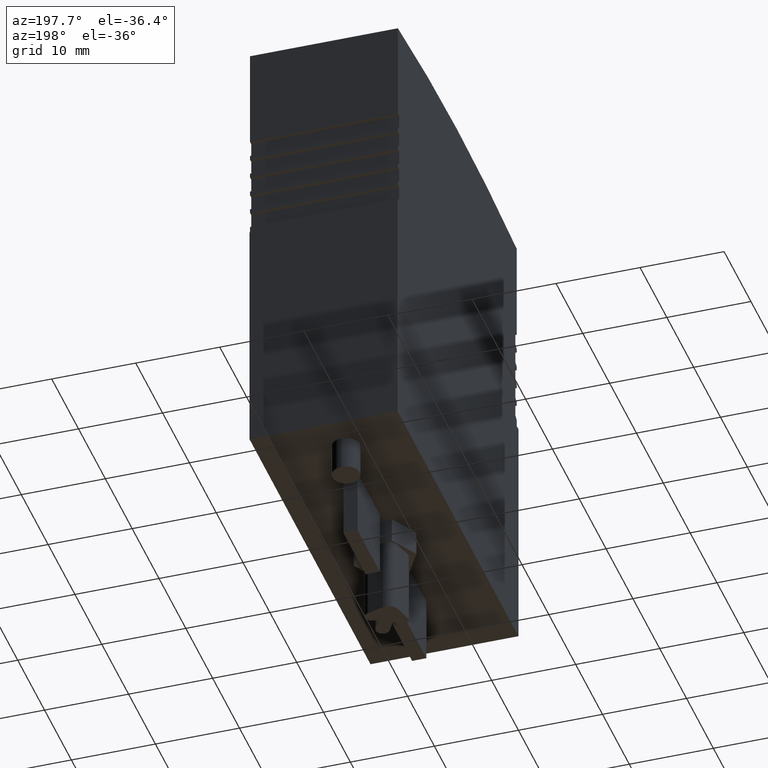
[diagram: clean part render]
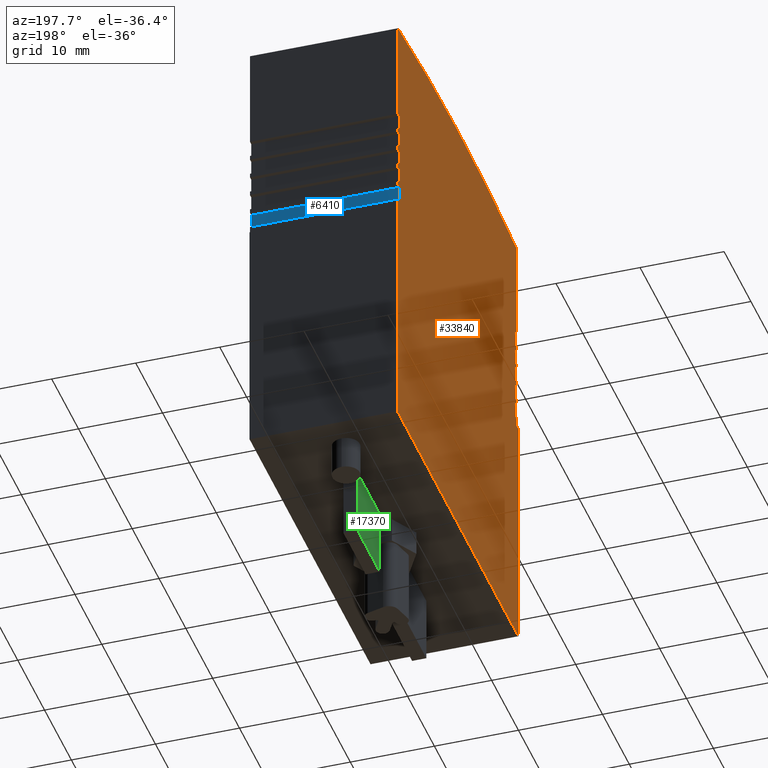
[diagram: same view with three faces highlighted in distinct colors, each labeled with its STEP entity id]
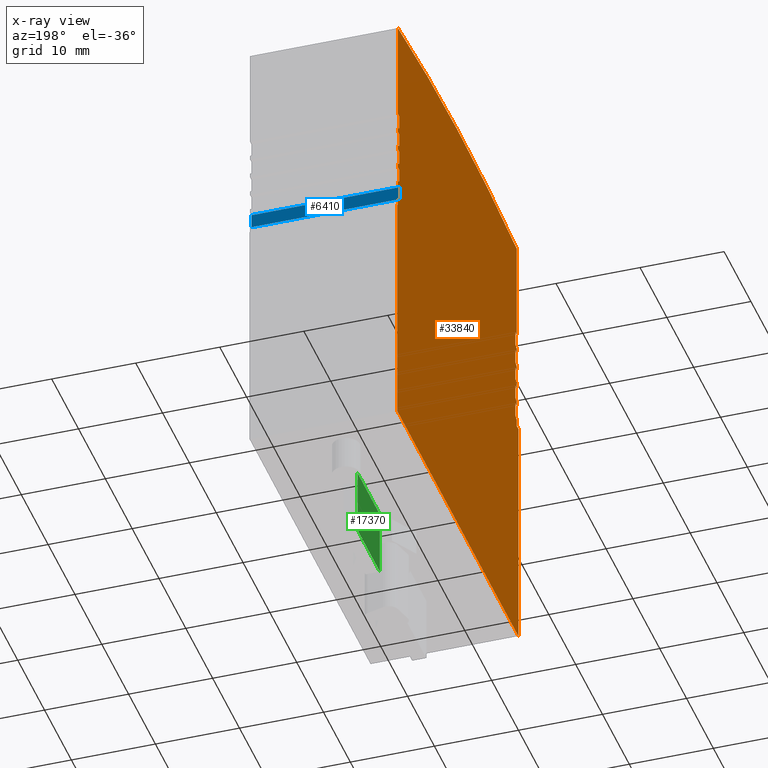
[diagram: x-ray of the same camera — body ghosted, the three highlighted faces saturated]
A machine part, auxiliary view with three faces highlighted in distinct colors.
The next image is the same camera in x-ray (body ghosted, the three faces saturated) — at least one of them is partly hidden behind the body in this view.
Their STEP definitions:

[orange] entity #33840 — the highlighted planar face has unit normal (-1, -0, 0).
#120=CARTESIAN_POINT('',(22.6924725131403,59.7149883136079,
2.64988270574728));
#130=VERTEX_POINT('',#120);
#160=CARTESIAN_POINT('',(22.6924720091142,-20.1499999998783,
2.64988270574629));
#170=DIRECTION('',(-6.31097646541974E-9,-1.,-1.24373101127272E-14));
#180=VECTOR('',#170,1.);
#190=LINE('',#160,#180);
#200=CARTESIAN_POINT('',(22.6924725099848,59.2149894029562,
2.64988270574727));
#210=VERTEX_POINT('',#200);
#220=EDGE_CURVE('',#130,#210,#190,.T.);
#540=CARTESIAN_POINT('',(0.292475090033933,59.2149894029563,
2.64988270574728));
#550=DIRECTION('',(-1.,2.22569369854498E-15,2.44929359829343E-16));
#560=VECTOR('',#550,1.);
#570=LINE('',#540,#560);
#580=CARTESIAN_POINT('',(22.1924724904202,59.2149894029562,
2.64988270574727));
#590=VERTEX_POINT('',#580);
#600=EDGE_CURVE('',#210,#590,#570,.T.);
#970=CARTESIAN_POINT('',(22.6924724973629,57.2149882065161,
2.64988270574725));
#980=VERTEX_POINT('',#970);
#1010=CARTESIAN_POINT('',(22.6924720091143,-20.1499999998783,
2.64988270574629));
#1020=DIRECTION('',(-6.31097646541974E-9,-1.,-1.24373101127272E-14));
#1030=VECTOR('',#1020,1.);
#1040=LINE('',#1010,#1030);
#1050=CARTESIAN_POINT('',(22.6924724942074,56.7149894029562,
2.64988270574724));
#1060=VERTEX_POINT('',#1050);
#1070=EDGE_CURVE('',#980,#1060,#1040,.T.);
#1420=CARTESIAN_POINT('',(22.1924724674084,60.0036664939326,
2.64988270574728));
#1430=VERTEX_POINT('',#1420);
#1480=CARTESIAN_POINT('',(0.292475090034099,72.6477681214871,
2.64988270574745));
#1490=DIRECTION('',(0.866023139286765,-0.500003922204513,
-6.42190592683949E-15));
#1500=VECTOR('',#1490,1.);
#1510=LINE('',#1480,#1500);
#1520=EDGE_CURVE('',#1430,#130,#1510,.T.);
#1770=CARTESIAN_POINT('',(22.1924724904183,-20.1499999998783,
2.64988270574629));
#1780=DIRECTION('',(-2.3541975771348E-14,-1.,-1.24373101147408E-14));
#1790=VECTOR('',#1780,1.);
#1800=LINE('',#1770,#1790);
#1810=CARTESIAN_POINT('',(22.1924724904201,57.5036665953906,
2.64988270574725));
#1820=VERTEX_POINT('',#1810);
#1830=EDGE_CURVE('',#590,#1820,#1800,.T.);
#2150=CARTESIAN_POINT('',(0.292475090034068,70.1477783516184,
2.64988270574742));
#2160=DIRECTION('',(0.866022966077588,-0.50000422220835,
-6.42190966184857E-15));
#2170=VECTOR('',#2160,1.);
#2180=LINE('',#2150,#2170);
#2190=EDGE_CURVE('',#1820,#980,#2180,.T.);
#5930=CARTESIAN_POINT('',(0.292475090033902,56.7149894029563,
2.64988270574725));
#5940=DIRECTION('',(-1.,2.22569369854498E-15,2.44929359829343E-16));
#5950=VECTOR('',#5940,1.);
#5960=LINE('',#5930,#5950);
#5970=CARTESIAN_POINT('',(22.1924724904201,56.7149894029563,
2.64988270574724));
#5980=VERTEX_POINT('',#5970);
#5990=EDGE_CURVE('',#1060,#5980,#5960,.T.);
#6240=CARTESIAN_POINT('',(22.1924724904183,-20.1499999998783,
2.64988270574629));
#6250=DIRECTION('',(-2.3541975771348E-14,-1.,-1.24373101147408E-14));
#6260=VECTOR('',#6250,1.);
#6270=LINE('',#6240,#6260);
#6280=CARTESIAN_POINT('',(22.1924724904201,55.0036665953905,
2.64988270574722));
#6290=VERTEX_POINT('',#6280);
#6300=EDGE_CURVE('',#5980,#6290,#6270,.T.);
#6550=CARTESIAN_POINT('',(0.292475090034037,67.6477783516183,
2.64988270574738));
#6560=DIRECTION('',(0.866022966077588,-0.50000422220835,
-6.42190966184857E-15));
#6570=VECTOR('',#6560,1.);
#6580=LINE('',#6550,#6570);
#6590=CARTESIAN_POINT('',(22.692472462647,54.7149882265594,
2.64988270574722));
#6600=VERTEX_POINT('',#6590);
#6610=EDGE_CURVE('',#6290,#6600,#6580,.T.);
#6860=CARTESIAN_POINT('',(22.6924724626451,-20.1499999998783,
2.64988270574629));
#6870=DIRECTION('',(-2.60052831072351E-14,-1.,-1.24373101147408E-14));
#6880=VECTOR('',#6870,1.);
#6890=LINE('',#6860,#6880);
#6900=CARTESIAN_POINT('',(22.692472462647,53.8645893914091,
2.64988270574721));
#6910=VERTEX_POINT('',#6900);
#6920=EDGE_CURVE('',#6600,#6910,#6890,.T.);
#7200=CARTESIAN_POINT('',(22.8462375601576,53.8645893914091,
2.64988270574721));
#7210=VERTEX_POINT('',#7200);
#7240=CARTESIAN_POINT('',(22.8462375601576,-20.1499999998783,
2.64988270574629));
#7250=DIRECTION('',(1.26591334879562E-16,-1.,-1.24373101147408E-14));
#7260=VECTOR('',#7250,1.);
#7270=LINE('',#7240,#7260);
#7280=CARTESIAN_POINT('',(22.8462375601576,24.7145893912871,
2.64988270574684));
#7290=VERTEX_POINT('',#7280);
#7300=EDGE_CURVE('',#7210,#7290,#7270,.T.);
#7490=CARTESIAN_POINT('',(0.292475090033866,53.8645893914106,
2.64988270574721));
#7500=DIRECTION('',(1.,-6.73194574110987E-14,-2.44929359830154E-16));
#7510=VECTOR('',#7500,1.);
#7520=LINE('',#7490,#7510);
#7530=EDGE_CURVE('',#6910,#7210,#7520,.T.);
#7710=CARTESIAN_POINT('',(0.292475090033866,53.8645893914106,
2.64988270574721));
#7720=DIRECTION('',(1.,-6.73194574110987E-14,-2.44929359830154E-16));
#7730=VECTOR('',#7720,1.);
#7740=LINE('',#7710,#7730);
#7750=CARTESIAN_POINT('',(-22.2537624398426,53.8645893914122,
2.64988270574722));
#7760=VERTEX_POINT('',#7750);
#7770=CARTESIAN_POINT('',(-21.6075274793369,53.8645893914121,
2.64988270574722));
#7780=VERTEX_POINT('',#7770);
#7790=EDGE_CURVE('',#7760,#7780,#7740,.T.);
#8100=CARTESIAN_POINT('',(-21.6075274793449,-20.1499999998778,
2.6498827057463));
#8110=DIRECTION('',(1.08637101161914E-13,1.,1.24373101147408E-14));
#8120=VECTOR('',#8110,1.);
#8130=LINE('',#8100,#8120);
#8140=CARTESIAN_POINT('',(-21.6075274793368,54.7149882265624,
2.64988270574723));
#8150=VERTEX_POINT('',#8140);
#8160=EDGE_CURVE('',#7780,#8150,#8130,.T.);
#8410=CARTESIAN_POINT('',(0.292475090034034,67.3591029671346,
2.64988270574738));
#8420=DIRECTION('',(0.866022966077655,0.500004222208234,
6.01550618185897E-15));
#8430=VECTOR('',#8420,1.);
#8440=LINE('',#8410,#8430);
#8450=CARTESIAN_POINT('',(-21.1075275071098,55.0036665953934,
2.64988270574723));
#8460=VERTEX_POINT('',#8450);
#8470=EDGE_CURVE('',#8150,#8460,#8440,.T.);
#8720=CARTESIAN_POINT('',(-21.1075275071181,-20.1499999998778,
2.6498827057463));
#8730=DIRECTION('',(1.11100408497801E-13,1.,1.24373101147408E-14));
#8740=VECTOR('',#8730,1.);
#8750=LINE('',#8720,#8740);
#8760=CARTESIAN_POINT('',(-21.1075275071096,56.7149894029592,
2.64988270574725));
#8770=VERTEX_POINT('',#8760);
#8780=EDGE_CURVE('',#8460,#8770,#8750,.T.);
#9030=CARTESIAN_POINT('',(0.292475090033902,56.7149894029564,
2.64988270574725));
#9040=DIRECTION('',(-1.,1.32416690570604E-13,2.4492935983096E-16));
#9050=VECTOR('',#9040,1.);
#9060=LINE('',#9030,#9050);
#9070=CARTESIAN_POINT('',(-21.6075275108969,56.7149894029593,
2.64988270574725));
#9080=VERTEX_POINT('',#9070);
#9090=EDGE_CURVE('',#8770,#9080,#9060,.T.);
#9340=CARTESIAN_POINT('',(-21.6075270258142,-20.1499999998778,
2.6498827057463));
#9350=DIRECTION('',(-6.31084182303547E-9,1.,1.24373101167545E-14));
#9360=VECTOR('',#9350,1.);
#9370=LINE('',#9340,#9360);
#9380=CARTESIAN_POINT('',(-21.6075275140524,57.2149882065191,
2.64988270574726));
#9390=VERTEX_POINT('',#9380);
#9400=EDGE_CURVE('',#9080,#9390,#9370,.T.);
#9650=CARTESIAN_POINT('',(0.292475090034065,69.8591029671346,
2.64988270574741));
#9660=DIRECTION('',(0.866022966077655,0.500004222208234,
6.01550618185897E-15));
#9670=VECTOR('',#9660,1.);
#9680=LINE('',#9650,#9670);
#9690=CARTESIAN_POINT('',(-21.1075275071096,57.5036665953935,
2.64988270574726));
#9700=VERTEX_POINT('',#9690);
#9710=EDGE_CURVE('',#9390,#9700,#9680,.T.);
#9960=CARTESIAN_POINT('',(-21.1075275071181,-20.1499999998778,
2.6498827057463));
#9970=DIRECTION('',(1.11100408497801E-13,1.,1.24373101147408E-14));
#9980=VECTOR('',#9970,1.);
#9990=LINE('',#9960,#9980);
#10000=CARTESIAN_POINT('',(-21.1075275071093,59.2149894029591,
2.64988270574728));
#10010=VERTEX_POINT('',#10000);
#10020=EDGE_CURVE('',#9700,#10010,#9990,.T.);
#10270=CARTESIAN_POINT('',(0.292475090033933,59.2149894029563,
2.64988270574728));
#10280=DIRECTION('',(-1.,1.32416690570604E-13,2.4492935983096E-16));
#10290=VECTOR('',#10280,1.);
#10300=LINE('',#10270,#10290);
#10310=CARTESIAN_POINT('',(-21.607527526674,59.2149894029592,
2.64988270574728));
#10320=VERTEX_POINT('',#10310);
#10330=EDGE_CURVE('',#10010,#10320,#10300,.T.);
#10580=CARTESIAN_POINT('',(-21.6075270258141,-20.1499999998778,
2.6498827057463));
#10590=DIRECTION('',(-6.31084182303547E-9,1.,1.24373101167545E-14));
#10600=VECTOR('',#10590,1.);
#10610=LINE('',#10580,#10600);
#10620=CARTESIAN_POINT('',(-21.6075275298294,59.7149883136109,
2.64988270574729));
#10630=VERTEX_POINT('',#10620);
#10640=EDGE_CURVE('',#10320,#10630,#10610,.T.);
#10890=CARTESIAN_POINT('',(0.292475090034096,72.3590929679457,
2.64988270574744));
#10900=DIRECTION('',(0.866023139286832,0.500003922204396,
6.01550240442587E-15));
#10910=VECTOR('',#10900,1.);
#10920=LINE('',#10890,#10910);
#10930=CARTESIAN_POINT('',(-21.1075274840974,60.0036664939355,
2.64988270574729));
#10940=VERTEX_POINT('',#10930);
#10950=EDGE_CURVE('',#10630,#10940,#10920,.T.);
#11200=CARTESIAN_POINT('',(-21.1075260003224,-20.1499999998778,
2.6498827057463));
#11210=DIRECTION('',(-1.851162961977E-8,1.,1.24373101186622E-14));
#11220=VECTOR('',#11210,1.);
#11230=LINE('',#11200,#11220);
#11240=CARTESIAN_POINT('',(-21.1075275157768,61.7149894029589,
2.64988270574732));
#11250=VERTEX_POINT('',#11240);
#11260=EDGE_CURVE('',#10940,#11250,#11230,.T.);
#11510=CARTESIAN_POINT('',(0.292475090033964,61.7149894029565,
2.64988270574731));
#11520=DIRECTION('',(-1.,1.11100408497801E-13,2.44929359830699E-16));
#11530=VECTOR('',#11520,1.);
#11540=LINE('',#11510,#11530);
#11550=CARTESIAN_POINT('',(-21.6075275283717,61.7149894029589,
2.64988270574732));
#11560=VERTEX_POINT('',#11550);
#11570=EDGE_CURVE('',#11250,#11560,#11540,.T.);
#11820=CARTESIAN_POINT('',(-21.6075275283808,-20.1499999998778,
2.6498827057463));
#11830=DIRECTION('',(1.11100408497801E-13,1.,1.24373101147408E-14));
#11840=VECTOR('',#11830,1.);
#11850=LINE('',#11820,#11840);
#11860=CARTESIAN_POINT('',(-21.6075275283716,62.2149883144523,
2.64988270574732));
#11870=VERTEX_POINT('',#11860);
#11880=EDGE_CURVE('',#11560,#11870,#11850,.T.);
#12130=CARTESIAN_POINT('',(0.292475090034127,74.8590929679455,
2.64988270574747));
#12140=DIRECTION('',(0.866023139286832,0.500003922204396,
6.01550240442587E-15));
#12150=VECTOR('',#12140,1.);
#12160=LINE('',#12130,#12150);
#12170=CARTESIAN_POINT('',(-21.1075274840972,62.5036664939354,
2.64988270574733));
#12180=VERTEX_POINT('',#12170);
#12190=EDGE_CURVE('',#11870,#12180,#12160,.T.);
#12440=CARTESIAN_POINT('',(-21.1075259540431,-20.1499999998778,
2.6498827057463));
#12450=DIRECTION('',(-1.851162961977E-8,1.,1.24373101186622E-14));
#12460=VECTOR('',#12450,1.);
#12470=LINE('',#12440,#12460);
#12480=CARTESIAN_POINT('',(-21.1075275157765,64.2149894029589,
2.64988270574735));
#12490=VERTEX_POINT('',#12480);
#12500=EDGE_CURVE('',#12180,#12490,#12470,.T.);
#12750=CARTESIAN_POINT('',(0.292475090033995,64.2149894029565,
2.64988270574734));
#12760=DIRECTION('',(-1.,1.11100408497801E-13,2.44929359830699E-16));
#12770=VECTOR('',#12760,1.);
#12780=LINE('',#12750,#12770);
#12790=CARTESIAN_POINT('',(-21.6075275083719,64.2149894029589,
2.64988270574735));
#12800=VERTEX_POINT('',#12790);
#12810=EDGE_CURVE('',#12490,#12800,#12780,.T.);
#13060=CARTESIAN_POINT('',(-21.6075212373564,-20.1499999998778,
2.6498827057463));
#13070=DIRECTION('',(-7.43319653554157E-8,0.999999999999997,
1.24373101304613E-14));
#13080=VECTOR('',#13070,1.);
#13090=LINE('',#13060,#13080);
#13100=CARTESIAN_POINT('',(-21.6075275455378,64.7149883045421,
2.64988270574735));
#13110=VERTEX_POINT('',#13100);
#13120=EDGE_CURVE('',#12800,#13110,#13090,.T.);
#13370=CARTESIAN_POINT('',(0.292475090034158,77.359092967842,
2.64988270574751));
#13380=DIRECTION('',(0.866023139288619,0.500003922201301,
6.0155024043869E-15));
#13390=VECTOR('',#13380,1.);
#13400=LINE('',#13370,#13390);
#13410=CARTESIAN_POINT('',(-21.1075274840969,65.003666493934,
2.64988270574736));
#13420=VERTEX_POINT('',#13410);
#13430=EDGE_CURVE('',#13110,#13420,#13400,.T.);
#13680=CARTESIAN_POINT('',(-21.1075259077637,-20.1499999998778,
2.6498827057463));
#13690=DIRECTION('',(-1.851162961977E-8,1.,1.24373101186622E-14));
#13700=VECTOR('',#13690,1.);
#13710=LINE('',#13680,#13700);
#13720=CARTESIAN_POINT('',(-21.1075275157763,66.7149894029575,
2.64988270574738));
#13730=VERTEX_POINT('',#13720);
#13740=EDGE_CURVE('',#13420,#13730,#13710,.T.);
#13990=CARTESIAN_POINT('',(0.292475090034026,66.714989402876,
2.64988270574737));
#14000=DIRECTION('',(-1.,3.80391382466514E-12,2.44929359876765E-16));
#14010=VECTOR('',#14000,1.);
#14020=LINE('',#13990,#14010);
#14030=CARTESIAN_POINT('',(-21.6075275083439,66.7149894029593,
2.64988270574738));
#14040=VERTEX_POINT('',#14030);
#14050=EDGE_CURVE('',#13730,#14040,#14020,.T.);
#14330=CARTESIAN_POINT('',(-22.2537624398426,24.7145893912871,
2.64988270574686));
#14340=VERTEX_POINT('',#14330);
#14370=CARTESIAN_POINT('',(-22.2537624398426,-20.1499999998778,
2.6498827057463));
#14380=DIRECTION('',(-1.26591334879562E-16,1.,1.24373101147408E-14));
#14390=VECTOR('',#14380,1.);
#14400=LINE('',#14370,#14390);
#14410=EDGE_CURVE('',#14340,#7760,#14400,.T.);
#15910=CARTESIAN_POINT('',(0.292475090033505,24.7145893912871,
2.64988270574685));
#15920=DIRECTION('',(-1.,-1.26591334879567E-16,2.44929359829314E-16));
#15930=VECTOR('',#15920,1.);
#15940=LINE('',#15910,#15930);
#15950=EDGE_CURVE('',#7290,#14340,#15940,.T.);
#25930=CARTESIAN_POINT('',(-21.6075275083532,-20.1499999998778,
2.6498827057463));
#25940=DIRECTION('',(1.11100408497801E-13,1.,1.24373101147408E-14));
#25950=VECTOR('',#25940,1.);
#25960=LINE('',#25930,#25950);
#25970=CARTESIAN_POINT('',(-21.6075275083425,78.8123485403437,
2.64988270574753));
#25980=VERTEX_POINT('',#25970);
#25990=EDGE_CURVE('',#14040,#25980,#25960,.T.);
#27730=CARTESIAN_POINT('',(0.292472491654934,-119.985010597046,
2.64988270574505));
#27740=DIRECTION('',(2.44929359829315E-16,-1.24373101147408E-14,1.));
#27750=DIRECTION('',(2.09858061726449E-16,-1.,-1.24373101147408E-14));
#27760=AXIS2_PLACEMENT_3D('',#27730,#27740,#27750);
#27770=CIRCLE('',#27760,200.);
#27780=CARTESIAN_POINT('',(22.6924724916559,78.7566307366215,
2.64988270574752));
#27790=VERTEX_POINT('',#27780);
#27800=EDGE_CURVE('',#27790,#25980,#27770,.T.);
#29820=CARTESIAN_POINT('',(22.6924724916536,-20.1499999998783,
2.64988270574629));
#29830=DIRECTION('',(-2.3541975771348E-14,-1.,-1.24373101147408E-14));
#29840=VECTOR('',#29830,1.);
#29850=LINE('',#29820,#29840);
#29860=CARTESIAN_POINT('',(22.6924724916557,66.7149894029563,
2.64988270574737));
#29870=VERTEX_POINT('',#29860);
#29880=EDGE_CURVE('',#27790,#29870,#29850,.T.);
#30130=CARTESIAN_POINT('',(0.292475090034026,66.7149894028742,
2.64988270574737));
#30140=DIRECTION('',(-1.,-3.66926797094904E-12,2.44929359784004E-16));
#30150=VECTOR('',#30140,1.);
#30160=LINE('',#30130,#30150);
#30170=CARTESIAN_POINT('',(22.1924724990881,66.7149894029545,
2.64988270574737));
#30180=VERTEX_POINT('',#30170);
#30190=EDGE_CURVE('',#29870,#30180,#30160,.T.);
#30440=CARTESIAN_POINT('',(22.1924708910639,-20.1499999998783,
2.64988270574629));
#30450=DIRECTION('',(-1.85117642656237E-8,-1.,-1.24373101108194E-14));
#30460=VECTOR('',#30450,1.);
#30470=LINE('',#30440,#30460);
#30480=CARTESIAN_POINT('',(22.1924724674085,65.0036664939311,
2.64988270574735));
#30490=VERTEX_POINT('',#30480);
#30500=EDGE_CURVE('',#30180,#30490,#30470,.T.);
#30750=CARTESIAN_POINT('',(0.292475090034161,77.6477681213813,
2.64988270574751));
#30760=DIRECTION('',(0.866023139288552,-0.500003922201418,
-6.39415035118532E-15));
#30770=VECTOR('',#30760,1.);
#30780=LINE('',#30750,#30770);
#30790=CARTESIAN_POINT('',(22.6924725288493,64.7149883045391,
2.64988270574734));
#30800=VERTEX_POINT('',#30790);
#30810=EDGE_CURVE('',#30490,#30800,#30780,.T.);
#31060=CARTESIAN_POINT('',(22.6924662206565,-20.1499999998783,
2.64988270574629));
#31070=DIRECTION('',(-7.43321000012694E-8,-0.999999999999997,
-1.24373100990203E-14));
#31080=VECTOR('',#31070,1.);
#31090=LINE('',#31060,#31080);
#31100=CARTESIAN_POINT('',(22.6924724916834,64.2149894029559,
2.64988270574734));
#31110=VERTEX_POINT('',#31100);
#31120=EDGE_CURVE('',#30800,#31110,#31090,.T.);
#31370=CARTESIAN_POINT('',(0.292475090033995,64.2149894029564,
2.64988270574734));
#31380=DIRECTION('',(-1.,2.3541975771348E-14,2.44929359829608E-16));
#31390=VECTOR('',#31380,1.);
#31400=LINE('',#31370,#31390);
#31410=CARTESIAN_POINT('',(22.1924724990881,64.2149894029559,
2.64988270574734));
#31420=VERTEX_POINT('',#31410);
#31430=EDGE_CURVE('',#31110,#31420,#31400,.T.);
#31680=CARTESIAN_POINT('',(22.1924709373433,-20.1499999998783,
2.64988270574629));
#31690=DIRECTION('',(-1.85117642656237E-8,-1.,-1.24373101108194E-14));
#31700=VECTOR('',#31690,1.);
#31710=LINE('',#31680,#31700);
#31720=CARTESIAN_POINT('',(22.1924724674084,62.5036664939325,
2.64988270574731));
#31730=VERTEX_POINT('',#31720);
#31740=EDGE_CURVE('',#31420,#31730,#31710,.T.);
#31990=CARTESIAN_POINT('',(0.29247509003413,75.1477681214871,
2.64988270574748));
#32000=DIRECTION('',(0.866023139286765,-0.500003922204513,
-6.42190592683949E-15));
#32010=VECTOR('',#32000,1.);
#32020=LINE('',#31990,#32010);
#32030=CARTESIAN_POINT('',(22.6924725116829,62.2149883144493,
2.64988270574731));
#32040=VERTEX_POINT('',#32030);
#32050=EDGE_CURVE('',#31730,#32040,#32020,.T.);
#32300=CARTESIAN_POINT('',(22.6924725116809,-20.1499999998783,
2.64988270574629));
#32310=DIRECTION('',(-2.3541975771348E-14,-1.,-1.24373101147408E-14));
#32320=VECTOR('',#32310,1.);
#32330=LINE('',#32300,#32320);
#32340=CARTESIAN_POINT('',(22.6924725116829,61.7149894029559,
2.6498827057473));
#32350=VERTEX_POINT('',#32340);
#32360=EDGE_CURVE('',#32040,#32350,#32330,.T.);
#32610=CARTESIAN_POINT('',(0.292475090033964,61.7149894029565,
2.64988270574731));
#32620=DIRECTION('',(-1.,2.3541975771348E-14,2.44929359829608E-16));
#32630=VECTOR('',#32620,1.);
#32640=LINE('',#32610,#32630);
#32650=CARTESIAN_POINT('',(22.192472499088,61.7149894029559,
2.64988270574731));
#32660=VERTEX_POINT('',#32650);
#32670=EDGE_CURVE('',#32350,#32660,#32640,.T.);
#32920=CARTESIAN_POINT('',(22.1924709836226,-20.1499999998783,
2.64988270574629));
#32930=DIRECTION('',(-1.85117642656237E-8,-1.,-1.24373101108194E-14));
#32940=VECTOR('',#32930,1.);
#32950=LINE('',#32920,#32940);
#32960=EDGE_CURVE('',#32660,#1430,#32950,.T.);
#33290=CARTESIAN_POINT('',(-32.2109646920055,19.3208339196504,
2.64988270574679));
#33300=DIRECTION('',(-2.44929359829315E-16,1.24373101147408E-14,-1.));
#33310=DIRECTION('',(0.0250118036177386,0.99968715590418,
1.24272930506553E-14));
#33320=AXIS2_PLACEMENT_3D('',#33290,#33300,#33310);
#33330=PLANE('',#33320);
#33340=ORIENTED_EDGE('',*,*,#1830,.T.);
#33350=ORIENTED_EDGE('',*,*,#600,.T.);
#33360=ORIENTED_EDGE('',*,*,#220,.T.);
#33370=ORIENTED_EDGE('',*,*,#1520,.T.);
#33380=ORIENTED_EDGE('',*,*,#32960,.T.);
#33390=ORIENTED_EDGE('',*,*,#32670,.T.);
#33400=ORIENTED_EDGE('',*,*,#32360,.T.);
#33410=ORIENTED_EDGE('',*,*,#32050,.T.);
#33420=ORIENTED_EDGE('',*,*,#31740,.T.);
#33430=ORIENTED_EDGE('',*,*,#31430,.T.);
#33440=ORIENTED_EDGE('',*,*,#31120,.T.);
#33450=ORIENTED_EDGE('',*,*,#30810,.T.);
#33460=ORIENTED_EDGE('',*,*,#30500,.T.);
#33470=ORIENTED_EDGE('',*,*,#30190,.T.);
#33480=ORIENTED_EDGE('',*,*,#29880,.T.);
#33490=ORIENTED_EDGE('',*,*,#27800,.F.);
#33500=ORIENTED_EDGE('',*,*,#25990,.T.);
#33510=ORIENTED_EDGE('',*,*,#14050,.T.);
#33520=ORIENTED_EDGE('',*,*,#13740,.T.);
#33530=ORIENTED_EDGE('',*,*,#13430,.T.);
#33540=ORIENTED_EDGE('',*,*,#13120,.T.);
#33550=ORIENTED_EDGE('',*,*,#12810,.T.);
#33560=ORIENTED_EDGE('',*,*,#12500,.T.);
#33570=ORIENTED_EDGE('',*,*,#12190,.T.);
#33580=ORIENTED_EDGE('',*,*,#11880,.T.);
#33590=ORIENTED_EDGE('',*,*,#11570,.T.);
#33600=ORIENTED_EDGE('',*,*,#11260,.T.);
#33610=ORIENTED_EDGE('',*,*,#10950,.T.);
#33620=ORIENTED_EDGE('',*,*,#10640,.T.);
#33630=ORIENTED_EDGE('',*,*,#10330,.T.);
#33640=ORIENTED_EDGE('',*,*,#10020,.T.);
#33650=ORIENTED_EDGE('',*,*,#9710,.T.);
#33660=ORIENTED_EDGE('',*,*,#9400,.T.);
#33670=ORIENTED_EDGE('',*,*,#9090,.T.);
#33680=ORIENTED_EDGE('',*,*,#8780,.T.);
#33690=ORIENTED_EDGE('',*,*,#8470,.T.);
#33700=ORIENTED_EDGE('',*,*,#8160,.T.);
#33710=ORIENTED_EDGE('',*,*,#7790,.T.);
#33720=ORIENTED_EDGE('',*,*,#14410,.T.);
#33730=ORIENTED_EDGE('',*,*,#15950,.T.);
#33740=ORIENTED_EDGE('',*,*,#7300,.T.);
#33750=ORIENTED_EDGE('',*,*,#7530,.T.);
#33760=ORIENTED_EDGE('',*,*,#6920,.T.);
#33770=ORIENTED_EDGE('',*,*,#6610,.T.);
#33780=ORIENTED_EDGE('',*,*,#6300,.T.);
#33790=ORIENTED_EDGE('',*,*,#5990,.T.);
#33800=ORIENTED_EDGE('',*,*,#1070,.T.);
#33810=ORIENTED_EDGE('',*,*,#2190,.T.);
#33820=EDGE_LOOP('',(#33810,#33800,#33790,#33780,#33770,#33760,#33750,
#33740,#33730,#33720,#33710,#33700,#33690,#33680,#33670,#33660,#33650,
#33640,#33630,#33620,#33610,#33600,#33590,#33580,#33570,#33560,#33550,
#33540,#33530,#33520,#33510,#33500,#33490,#33480,#33470,#33460,#33450,
#33440,#33430,#33420,#33410,#33400,#33390,#33380,#33370,#33360,#33350,
#33340));
#33830=FACE_OUTER_BOUND('',#33820,.T.);
#33840=ADVANCED_FACE('',(#33830),#33330,.T.);

[blue] entity #6410 — the highlighted planar face has unit normal (0, -1, 0).
#3250=CARTESIAN_POINT('',(22.1924724904201,56.714989402956,
20.2498827057472));
#3260=VERTEX_POINT('',#3250);
#3290=CARTESIAN_POINT('',(22.1924724904183,-20.1499999998786,
20.2498827057463));
#3300=DIRECTION('',(2.3541975771348E-14,1.,1.24373101147408E-14));
#3310=VECTOR('',#3300,1.);
#3320=LINE('',#3290,#3310);
#3330=CARTESIAN_POINT('',(22.1924724904201,55.0036665953902,
20.2498827057472));
#3340=VERTEX_POINT('',#3330);
#3350=EDGE_CURVE('',#3340,#3260,#3320,.T.);
#5970=CARTESIAN_POINT('',(22.1924724904201,56.7149894029563,
2.64988270574724));
#5980=VERTEX_POINT('',#5970);
#6010=CARTESIAN_POINT('',(22.1924724904201,56.7149894029562,
7.14988270574728));
#6020=DIRECTION('',(2.44929359829315E-16,-1.24373101147408E-14,1.));
#6030=VECTOR('',#6020,1.);
#6040=LINE('',#6010,#6030);
#6050=EDGE_CURVE('',#5980,#3260,#6040,.T.);
#6180=CARTESIAN_POINT('',(22.1924724904201,56.7149894029558,
38.1498827057473));
#6190=DIRECTION('',(-1.,2.35408664809479E-14,2.44929359829608E-16));
#6200=DIRECTION('',(2.35408664809479E-14,1.,1.24373101147408E-14));
#6210=AXIS2_PLACEMENT_3D('',#6180,#6190,#6200);
#6220=PLANE('',#6210);
#6230=ORIENTED_EDGE('',*,*,#6050,.T.);
#6240=CARTESIAN_POINT('',(22.1924724904183,-20.1499999998783,
2.64988270574629));
#6250=DIRECTION('',(-2.3541975771348E-14,-1.,-1.24373101147408E-14));
#6260=VECTOR('',#6250,1.);
#6270=LINE('',#6240,#6260);
#6280=CARTESIAN_POINT('',(22.1924724904201,55.0036665953905,
2.64988270574722));
#6290=VERTEX_POINT('',#6280);
#6300=EDGE_CURVE('',#5980,#6290,#6270,.T.);
#6310=ORIENTED_EDGE('',*,*,#6300,.F.);
#6320=CARTESIAN_POINT('',(22.1924724904201,55.0036665953904,
7.14988270574726));
#6330=DIRECTION('',(2.44929359829315E-16,-1.24373101147408E-14,1.));
#6340=VECTOR('',#6330,1.);
#6350=LINE('',#6320,#6340);
#6360=EDGE_CURVE('',#6290,#3340,#6350,.T.);
#6370=ORIENTED_EDGE('',*,*,#6360,.F.);
#6380=ORIENTED_EDGE('',*,*,#3350,.F.);
#6390=EDGE_LOOP('',(#6380,#6370,#6310,#6230));
#6400=FACE_OUTER_BOUND('',#6390,.T.);
#6410=ADVANCED_FACE('',(#6400),#6220,.F.);

[green] entity #17370 — the highlighted planar face has unit normal (-1, -0, 0).
#15600=CARTESIAN_POINT('',(12.9712375536265,24.714589391287,
10.5499542461082));
#15610=VERTEX_POINT('',#15600);
#15780=CARTESIAN_POINT('',(4.67123755362646,24.714589391287,
10.5499542461082));
#15790=VERTEX_POINT('',#15780);
#15820=CARTESIAN_POINT('',(0.292475090033506,24.714589391287,
10.5499542461082));
#15830=DIRECTION('',(1.,1.22464679914738E-16,-2.44929359829314E-16));
#15840=VECTOR('',#15830,1.);
#15850=LINE('',#15820,#15840);
#15860=EDGE_CURVE('',#15790,#15610,#15850,.T.);
#16130=CARTESIAN_POINT('',(4.67123755362646,16.6645893912869,
10.5499542461081));
#16140=VERTEX_POINT('',#16130);
#16290=CARTESIAN_POINT('',(12.9712375536265,16.664589391287,
10.5499542461081));
#16300=VERTEX_POINT('',#16290);
#16330=CARTESIAN_POINT('',(4.67123755362646,16.6645893912869,
10.5499542461081));
#16340=DIRECTION('',(1.,1.22464679914738E-16,-2.44929359829313E-16));
#16350=VECTOR('',#16340,1.);
#16360=LINE('',#16330,#16350);
#16370=EDGE_CURVE('',#16140,#16300,#16360,.T.);
#16540=CARTESIAN_POINT('',(12.9712375536265,24.714589391287,
10.5499542461082));
#16550=DIRECTION('',(1.22464679914735E-16,-1.,-1.24373101147408E-14));
#16560=VECTOR('',#16550,1.);
#16570=LINE('',#16540,#16560);
#16580=EDGE_CURVE('',#15610,#16300,#16570,.T.);
#17090=CARTESIAN_POINT('',(4.67123755362646,24.714589391287,
10.5499542461082));
#17100=DIRECTION('',(1.22464679914735E-16,-1.,-1.24373101147408E-14));
#17110=VECTOR('',#17100,1.);
#17120=LINE('',#17090,#17110);
#17130=EDGE_CURVE('',#15790,#16140,#17120,.T.);
#17260=CARTESIAN_POINT('',(12.9712375536265,24.714589391287,
10.5499542461082));
#17270=DIRECTION('',(-2.44929359829315E-16,1.24373101147408E-14,-1.));
#17280=DIRECTION('',(-1.,-1.22464679914738E-16,2.44929359829313E-16));
#17290=AXIS2_PLACEMENT_3D('',#17260,#17270,#17280);
#17300=PLANE('',#17290);
#17310=ORIENTED_EDGE('',*,*,#17130,.F.);
#17320=ORIENTED_EDGE('',*,*,#16370,.F.);
#17330=ORIENTED_EDGE('',*,*,#16580,.T.);
#17340=ORIENTED_EDGE('',*,*,#15860,.T.);
#17350=EDGE_LOOP('',(#17340,#17330,#17320,#17310));
#17360=FACE_OUTER_BOUND('',#17350,.T.);
#17370=ADVANCED_FACE('',(#17360),#17300,.T.);